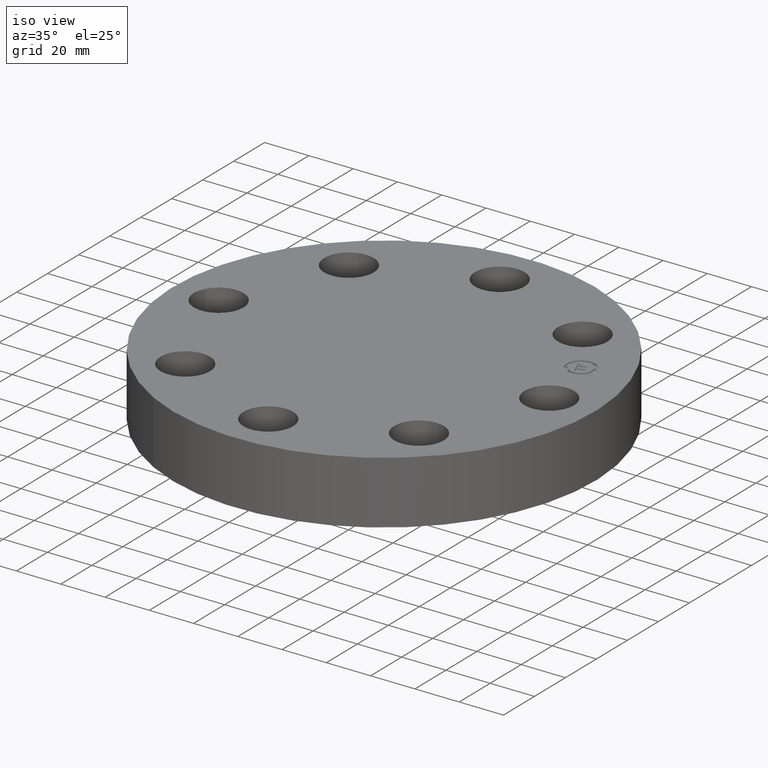
[diagram: clean part render]
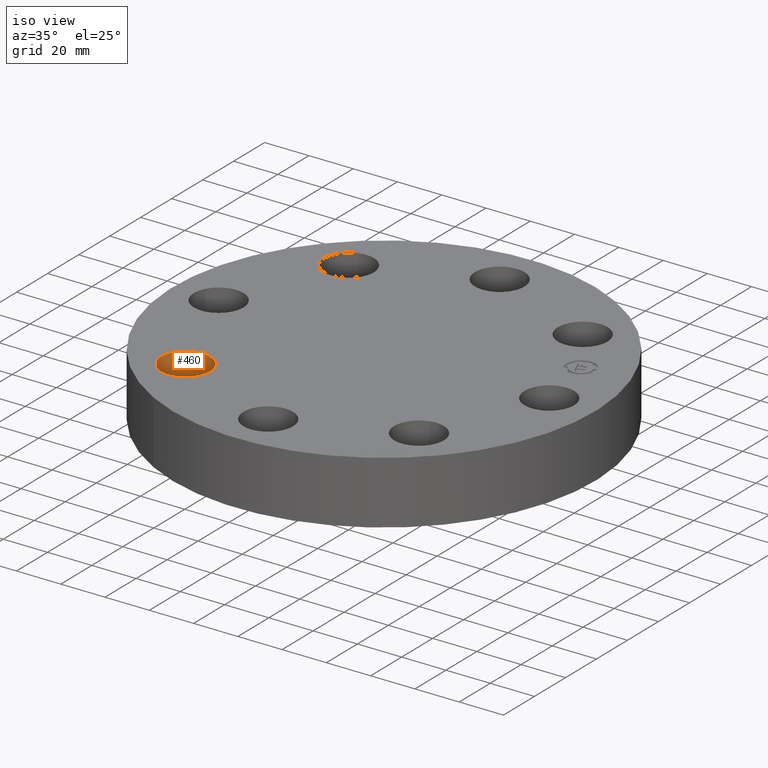
[diagram: same view with one face highlighted and labeled with its STEP entity id]
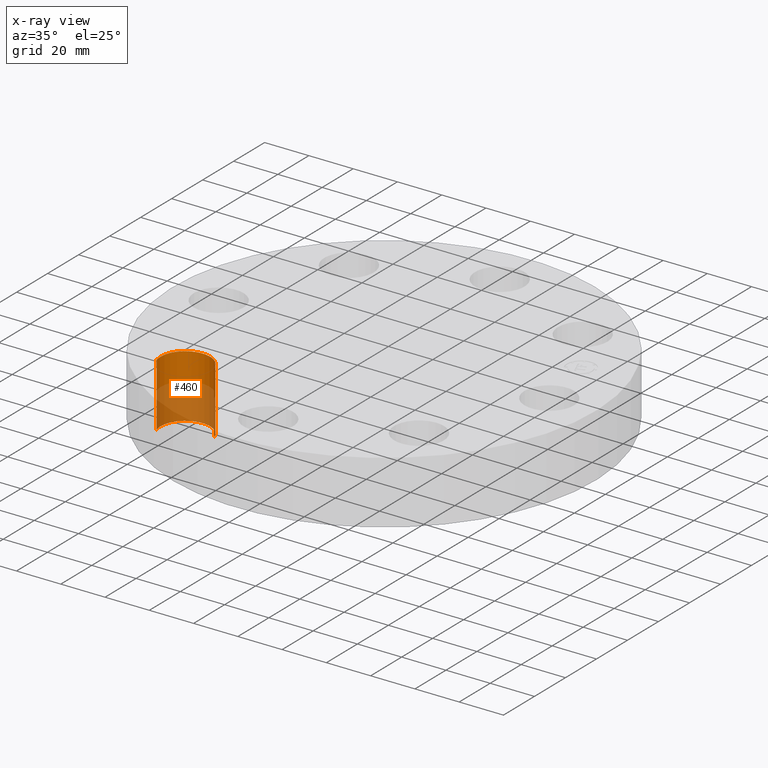
[diagram: x-ray of the same camera — body ghosted, the highlighted face saturated]
A machine part, iso view. The second image highlights one B-rep face of the part: STEP entity #460.
The next image is the same camera in x-ray: the body ghosted, the highlighted face saturated — about 56% of this face is hidden behind the body in this view.
In plain terms, the highlighted cylindrical surface (edge-blend (fillet) strip) has radius 11.176 mm, axis along (-0, 0, -1).
Its self-contained STEP definition (entity closure, byte-faithful):
#209=AXIS2_PLACEMENT_3D('Circle Axis2P3D',#207,#208,$) ;
#421=AXIS2_PLACEMENT_3D('Cylinder Axis2P3D',#418,#419,#420) ;
#451=AXIS2_PLACEMENT_3D('Circle Axis2P3D',#449,#450,$) ;
#202=CARTESIAN_POINT('Vertex',(-1.6566920995,-1.95501654299,0.)) ;
#204=CARTESIAN_POINT('Vertex',(-2.50109577389,-2.2027713304,0.)) ;
#207=CARTESIAN_POINT('Axis2P3D Location',(-2.0788939367,-2.0788939367,0.)) ;
#418=CARTESIAN_POINT('Axis2P3D Location',(-2.0788939367,-2.0788939367,1.11606299213)) ;
#423=CARTESIAN_POINT('Line Origine',(-1.6566920995,-1.95501654299,0.560000000002)) ;
#427=CARTESIAN_POINT('Vertex',(-1.6566920995,-1.95501654299,1.12)) ;
#430=CARTESIAN_POINT('Line Origine',(-2.50109577389,-2.2027713304,0.560000000002)) ;
#434=CARTESIAN_POINT('Vertex',(-2.50109577389,-2.2027713304,1.12)) ;
#449=CARTESIAN_POINT('Axis2P3D Location',(-2.0788939367,-2.0788939367,1.12)) ;
#208=DIRECTION('Axis2P3D Direction',(0.,0.,-0.0393700787402)) ;
#419=DIRECTION('Axis2P3D Direction',(-0.,0.,-0.0393700787402)) ;
#420=DIRECTION('Axis2P3D XDirection',(-0.0377775444876,-0.0110842335096,0.)) ;
#424=DIRECTION('Vector Direction',(0.,0.,-0.0393700787402)) ;
#431=DIRECTION('Vector Direction',(0.,0.,-0.0393700787402)) ;
#450=DIRECTION('Axis2P3D Direction',(-0.,0.,-0.0393700787402)) ;
#425=VECTOR('Line Direction',#424,0.0393700787402) ;
#432=VECTOR('Line Direction',#431,0.0393700787402) ;
#455=ORIENTED_EDGE('',*,*,#436,.F.) ;
#456=ORIENTED_EDGE('',*,*,#211,.T.) ;
#457=ORIENTED_EDGE('',*,*,#429,.T.) ;
#458=ORIENTED_EDGE('',*,*,#453,.F.) ;
#460=ADVANCED_FACE('PartBody',(#459),#422,.F.) ;
#210=CIRCLE('generated circle',#209,0.440000000002) ;
#452=CIRCLE('generated circle',#451,0.440000000002) ;
#422=CYLINDRICAL_SURFACE('generated cylinder',#421,0.440000000002) ;
#211=EDGE_CURVE('',#205,#203,#210,.T.) ;
#429=EDGE_CURVE('',#203,#428,#426,.F.) ;
#436=EDGE_CURVE('',#205,#435,#433,.F.) ;
#453=EDGE_CURVE('',#435,#428,#452,.T.) ;
#454=EDGE_LOOP('',(#455,#456,#457,#458)) ;
#459=FACE_OUTER_BOUND('',#454,.T.) ;
#426=LINE('Line',#423,#425) ;
#433=LINE('Line',#430,#432) ;
#203=VERTEX_POINT('',#202) ;
#205=VERTEX_POINT('',#204) ;
#428=VERTEX_POINT('',#427) ;
#435=VERTEX_POINT('',#434) ;